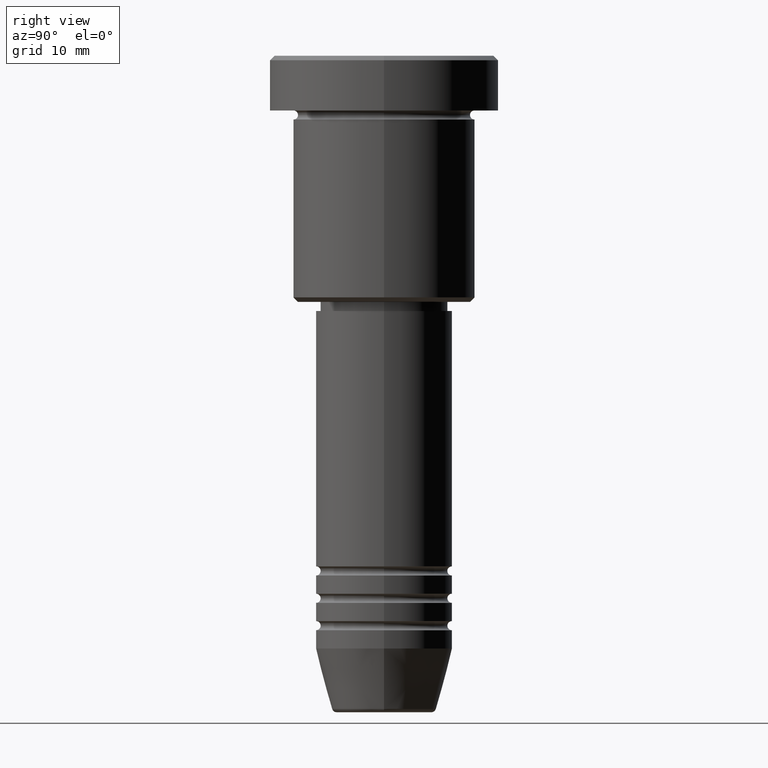
[diagram: clean part render]
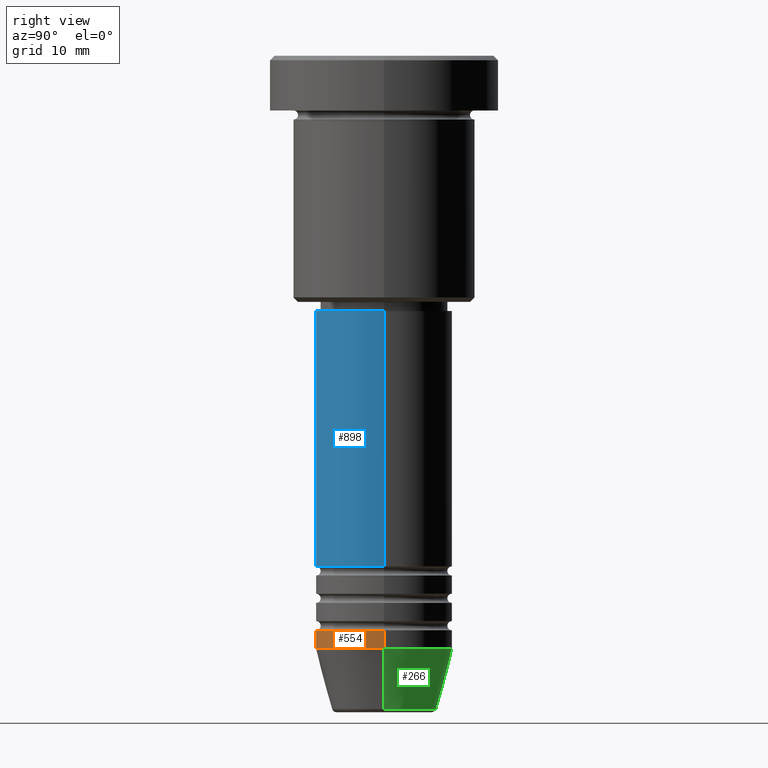
[diagram: same view with three faces highlighted in distinct colors, each labeled with its STEP entity id]
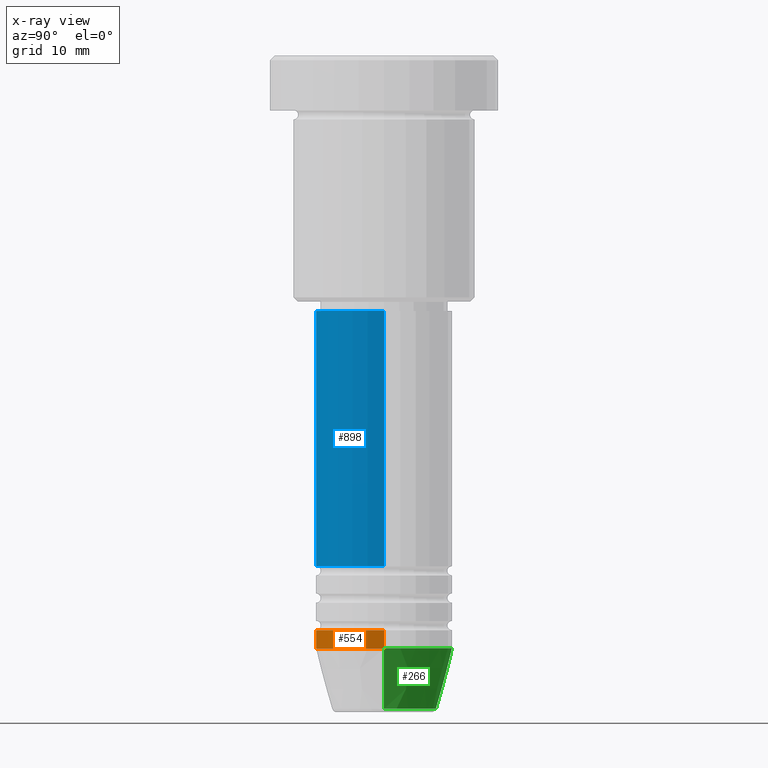
[diagram: x-ray of the same camera — body ghosted, the three highlighted faces saturated]
A machine part, right view with three faces highlighted in distinct colors.
The next image is the same camera in x-ray (body ghosted, the three faces saturated) — at least one of them is partly hidden behind the body in this view.
Their STEP definitions:

[orange] entity #554 — the highlighted cylindrical surface (partial cylindrical patch) has radius 7.5 mm, axis along (-0, -0, 1).
#18 = DIRECTION ( 'NONE',  ( -0.000000000000000000, -0.000000000000000000, 1.000000000000000000 ) ) ;
#20 = EDGE_CURVE ( 'NONE', #889, #855, #399, .T. ) ;
#77 = AXIS2_PLACEMENT_3D ( 'NONE', #794, #952, #271 ) ;
#130 = CARTESIAN_POINT ( 'NONE',  ( -7.500000000000000000, 9.184850993605147944E-16, -65.00000000000000000 ) ) ;
#197 = CARTESIAN_POINT ( 'NONE',  ( 0.000000000000000000, 0.000000000000000000, 0.000000000000000000 ) ) ;
#212 = VECTOR ( 'NONE', #1052, 1000.000000000000000 ) ;
#244 = DIRECTION ( 'NONE',  ( -0.000000000000000000, -0.000000000000000000, 1.000000000000000000 ) ) ;
#256 = EDGE_CURVE ( 'NONE', #373, #855, #967, .T. ) ;
#271 = DIRECTION ( 'NONE',  ( 1.000000000000000000, 0.000000000000000000, 0.000000000000000000 ) ) ;
#273 = CIRCLE ( 'NONE', #944, 7.500000000000000000 ) ;
#373 = VERTEX_POINT ( 'NONE', #815 ) ;
#375 = CYLINDRICAL_SURFACE ( 'NONE', #1101, 7.500000000000000000 ) ;
#399 = LINE ( 'NONE', #426, #930 ) ;
#404 = ORIENTED_EDGE ( 'NONE', *, *, #256, .F. ) ;
#426 = CARTESIAN_POINT ( 'NONE',  ( 7.500000000000000000, 0.000000000000000000, 0.000000000000000000 ) ) ;
#509 = DIRECTION ( 'NONE',  ( 1.000000000000000000, 0.000000000000000000, 0.000000000000000000 ) ) ;
#541 = VERTEX_POINT ( 'NONE', #130 ) ;
#554 = ADVANCED_FACE ( 'NONE', ( #642 ), #375, .T. ) ;
#632 = ORIENTED_EDGE ( 'NONE', *, *, #1067, .T. ) ;
#642 = FACE_OUTER_BOUND ( 'NONE', #1170, .T. ) ;
#778 = CARTESIAN_POINT ( 'NONE',  ( 7.500000000000000000, 0.000000000000000000, -63.00000000000000000 ) ) ;
#794 = CARTESIAN_POINT ( 'NONE',  ( 0.000000000000000000, 0.000000000000000000, -63.00000000000000000 ) ) ;
#815 = CARTESIAN_POINT ( 'NONE',  ( -7.500000000000000000, 9.184850993605147944E-16, -63.00000000000000000 ) ) ;
#855 = VERTEX_POINT ( 'NONE', #778 ) ;
#885 = DIRECTION ( 'NONE',  ( -0.000000000000000000, -0.000000000000000000, 1.000000000000000000 ) ) ;
#889 = VERTEX_POINT ( 'NONE', #1129 ) ;
#909 = EDGE_CURVE ( 'NONE', #541, #373, #1146, .T. ) ;
#930 = VECTOR ( 'NONE', #244, 1000.000000000000000 ) ;
#932 = DIRECTION ( 'NONE',  ( 1.000000000000000000, 0.000000000000000000, 0.000000000000000000 ) ) ;
#944 = AXIS2_PLACEMENT_3D ( 'NONE', #1065, #885, #509 ) ;
#952 = DIRECTION ( 'NONE',  ( -0.000000000000000000, -0.000000000000000000, 1.000000000000000000 ) ) ;
#967 = CIRCLE ( 'NONE', #77, 7.500000000000000000 ) ;
#1000 = ORIENTED_EDGE ( 'NONE', *, *, #909, .F. ) ;
#1052 = DIRECTION ( 'NONE',  ( -0.000000000000000000, -0.000000000000000000, 1.000000000000000000 ) ) ;
#1065 = CARTESIAN_POINT ( 'NONE',  ( 0.000000000000000000, 0.000000000000000000, -65.00000000000000000 ) ) ;
#1067 = EDGE_CURVE ( 'NONE', #541, #889, #273, .T. ) ;
#1074 = ORIENTED_EDGE ( 'NONE', *, *, #20, .T. ) ;
#1101 = AXIS2_PLACEMENT_3D ( 'NONE', #197, #18, #932 ) ;
#1118 = CARTESIAN_POINT ( 'NONE',  ( -7.500000000000000000, 9.184850993605147944E-16, 0.000000000000000000 ) ) ;
#1129 = CARTESIAN_POINT ( 'NONE',  ( 7.500000000000000000, 0.000000000000000000, -65.00000000000000000 ) ) ;
#1146 = LINE ( 'NONE', #1118, #212 ) ;
#1170 = EDGE_LOOP ( 'NONE', ( #1000, #632, #1074, #404 ) ) ;

[blue] entity #898 — the highlighted cylindrical surface (partial cylindrical patch) has radius 7.5 mm, axis along (-0, -0, 1).
#41 = ORIENTED_EDGE ( 'NONE', *, *, #281, .F. ) ;
#55 = ORIENTED_EDGE ( 'NONE', *, *, #62, .T. ) ;
#57 = VERTEX_POINT ( 'NONE', #134 ) ;
#62 = EDGE_CURVE ( 'NONE', #1093, #539, #669, .T. ) ;
#76 = CARTESIAN_POINT ( 'NONE',  ( -7.500000000000000000, 9.184850993605147944E-16, -55.99999999999997868 ) ) ;
#88 = LINE ( 'NONE', #264, #747 ) ;
#105 = ORIENTED_EDGE ( 'NONE', *, *, #549, .T. ) ;
#128 = CARTESIAN_POINT ( 'NONE',  ( 0.000000000000000000, 0.000000000000000000, 0.000000000000000000 ) ) ;
#134 = CARTESIAN_POINT ( 'NONE',  ( -7.500000000000000000, 9.184850993605147944E-16, -28.00000000000000355 ) ) ;
#135 = ORIENTED_EDGE ( 'NONE', *, *, #1097, .F. ) ;
#160 = DIRECTION ( 'NONE',  ( -0.000000000000000000, -0.000000000000000000, 1.000000000000000000 ) ) ;
#208 = CARTESIAN_POINT ( 'NONE',  ( 7.500000000000000000, 0.000000000000000000, 0.000000000000000000 ) ) ;
#218 = VERTEX_POINT ( 'NONE', #1022 ) ;
#264 = CARTESIAN_POINT ( 'NONE',  ( -7.500000000000000000, 9.184850993605147944E-16, 0.000000000000000000 ) ) ;
#281 = EDGE_CURVE ( 'NONE', #1093, #57, #88, .T. ) ;
#284 = DIRECTION ( 'NONE',  ( -0.000000000000000000, -0.000000000000000000, 1.000000000000000000 ) ) ;
#287 = CYLINDRICAL_SURFACE ( 'NONE', #288, 7.500000000000000000 ) ;
#288 = AXIS2_PLACEMENT_3D ( 'NONE', #128, #473, #487 ) ;
#295 = CARTESIAN_POINT ( 'NONE',  ( 7.500000000000000000, 0.000000000000000000, -55.99999999999997868 ) ) ;
#473 = DIRECTION ( 'NONE',  ( -0.000000000000000000, -0.000000000000000000, 1.000000000000000000 ) ) ;
#487 = DIRECTION ( 'NONE',  ( 1.000000000000000000, 0.000000000000000000, 0.000000000000000000 ) ) ;
#504 = DIRECTION ( 'NONE',  ( 1.000000000000000000, 0.000000000000000000, 0.000000000000000000 ) ) ;
#539 = VERTEX_POINT ( 'NONE', #295 ) ;
#549 = EDGE_CURVE ( 'NONE', #539, #218, #854, .T. ) ;
#571 = CIRCLE ( 'NONE', #828, 7.500000000000000000 ) ;
#598 = DIRECTION ( 'NONE',  ( -0.000000000000000000, -0.000000000000000000, 1.000000000000000000 ) ) ;
#669 = CIRCLE ( 'NONE', #973, 7.500000000000000000 ) ;
#678 = CARTESIAN_POINT ( 'NONE',  ( 0.000000000000000000, 0.000000000000000000, -55.99999999999997868 ) ) ;
#747 = VECTOR ( 'NONE', #160, 1000.000000000000000 ) ;
#802 = DIRECTION ( 'NONE',  ( 1.000000000000000000, 0.000000000000000000, 0.000000000000000000 ) ) ;
#828 = AXIS2_PLACEMENT_3D ( 'NONE', #975, #598, #802 ) ;
#854 = LINE ( 'NONE', #208, #1180 ) ;
#874 = EDGE_LOOP ( 'NONE', ( #41, #55, #105, #135 ) ) ;
#898 = ADVANCED_FACE ( 'NONE', ( #1136 ), #287, .T. ) ;
#973 = AXIS2_PLACEMENT_3D ( 'NONE', #678, #1058, #504 ) ;
#975 = CARTESIAN_POINT ( 'NONE',  ( 0.000000000000000000, 0.000000000000000000, -28.00000000000000355 ) ) ;
#1022 = CARTESIAN_POINT ( 'NONE',  ( 7.500000000000000000, 0.000000000000000000, -28.00000000000000355 ) ) ;
#1058 = DIRECTION ( 'NONE',  ( -0.000000000000000000, -0.000000000000000000, 1.000000000000000000 ) ) ;
#1093 = VERTEX_POINT ( 'NONE', #76 ) ;
#1097 = EDGE_CURVE ( 'NONE', #57, #218, #571, .T. ) ;
#1136 = FACE_OUTER_BOUND ( 'NONE', #874, .T. ) ;
#1180 = VECTOR ( 'NONE', #284, 1000.000000000000000 ) ;

[green] entity #266 — the highlighted conical surface has half-angle 15 deg.
#31 = EDGE_CURVE ( 'NONE', #889, #541, #729, .T. ) ;
#54 = DIRECTION ( 'NONE',  ( 1.000000000000000000, 0.000000000000000000, 0.000000000000000000 ) ) ;
#83 = CARTESIAN_POINT ( 'NONE',  ( 0.000000000000000000, 0.000000000000000000, -71.62940952255127058 ) ) ;
#111 = CONICAL_SURFACE ( 'NONE', #1143, 7.500000000000000000, 0.2617993877991500740 ) ;
#130 = CARTESIAN_POINT ( 'NONE',  ( -7.500000000000000000, 9.184850993605147944E-16, -65.00000000000000000 ) ) ;
#179 = CARTESIAN_POINT ( 'NONE',  ( 5.723655072137191269, 0.000000000000000000, -71.62940952255127058 ) ) ;
#182 = VECTOR ( 'NONE', #411, 1000.000000000000000 ) ;
#240 = EDGE_CURVE ( 'NONE', #603, #541, #868, .T. ) ;
#252 = CIRCLE ( 'NONE', #496, 5.723655072137191269 ) ;
#266 = ADVANCED_FACE ( 'NONE', ( #711 ), #111, .T. ) ;
#289 = CARTESIAN_POINT ( 'NONE',  ( -5.723655072137190380, 8.097153428560735915E-16, -71.62940952255127058 ) ) ;
#291 = VERTEX_POINT ( 'NONE', #179 ) ;
#315 = ORIENTED_EDGE ( 'NONE', *, *, #240, .T. ) ;
#325 = CARTESIAN_POINT ( 'NONE',  ( -7.500000000000000000, 9.184850993605147944E-16, -65.00000000000000000 ) ) ;
#359 = DIRECTION ( 'NONE',  ( 1.000000000000000000, 0.000000000000000000, 0.000000000000000000 ) ) ;
#400 = EDGE_CURVE ( 'NONE', #291, #889, #1043, .T. ) ;
#403 = VECTOR ( 'NONE', #765, 1000.000000000000000 ) ;
#411 = DIRECTION ( 'NONE',  ( 0.2588190451025213501, 0.000000000000000000, 0.9659258262890680902 ) ) ;
#496 = AXIS2_PLACEMENT_3D ( 'NONE', #83, #511, #987 ) ;
#500 = CARTESIAN_POINT ( 'NONE',  ( 7.500000000000000000, 0.000000000000000000, -65.00000000000000000 ) ) ;
#511 = DIRECTION ( 'NONE',  ( -0.000000000000000000, -0.000000000000000000, 1.000000000000000000 ) ) ;
#541 = VERTEX_POINT ( 'NONE', #130 ) ;
#602 = DIRECTION ( 'NONE',  ( -0.000000000000000000, -0.000000000000000000, 1.000000000000000000 ) ) ;
#603 = VERTEX_POINT ( 'NONE', #289 ) ;
#615 = DIRECTION ( 'NONE',  ( -0.000000000000000000, -0.000000000000000000, 1.000000000000000000 ) ) ;
#711 = FACE_OUTER_BOUND ( 'NONE', #901, .T. ) ;
#716 = CARTESIAN_POINT ( 'NONE',  ( 0.000000000000000000, 0.000000000000000000, -65.00000000000000000 ) ) ;
#729 = CIRCLE ( 'NONE', #832, 7.500000000000000000 ) ;
#765 = DIRECTION ( 'NONE',  ( -0.2588190451025213501, 3.169619151431772337E-17, 0.9659258262890680902 ) ) ;
#805 = ORIENTED_EDGE ( 'NONE', *, *, #31, .F. ) ;
#832 = AXIS2_PLACEMENT_3D ( 'NONE', #968, #602, #54 ) ;
#840 = EDGE_CURVE ( 'NONE', #291, #603, #252, .T. ) ;
#868 = LINE ( 'NONE', #325, #403 ) ;
#889 = VERTEX_POINT ( 'NONE', #1129 ) ;
#901 = EDGE_LOOP ( 'NONE', ( #1183, #315, #805, #1070 ) ) ;
#968 = CARTESIAN_POINT ( 'NONE',  ( 0.000000000000000000, 0.000000000000000000, -65.00000000000000000 ) ) ;
#987 = DIRECTION ( 'NONE',  ( 1.000000000000000000, 0.000000000000000000, 0.000000000000000000 ) ) ;
#1043 = LINE ( 'NONE', #500, #182 ) ;
#1070 = ORIENTED_EDGE ( 'NONE', *, *, #400, .F. ) ;
#1129 = CARTESIAN_POINT ( 'NONE',  ( 7.500000000000000000, 0.000000000000000000, -65.00000000000000000 ) ) ;
#1143 = AXIS2_PLACEMENT_3D ( 'NONE', #716, #615, #359 ) ;
#1183 = ORIENTED_EDGE ( 'NONE', *, *, #840, .T. ) ;